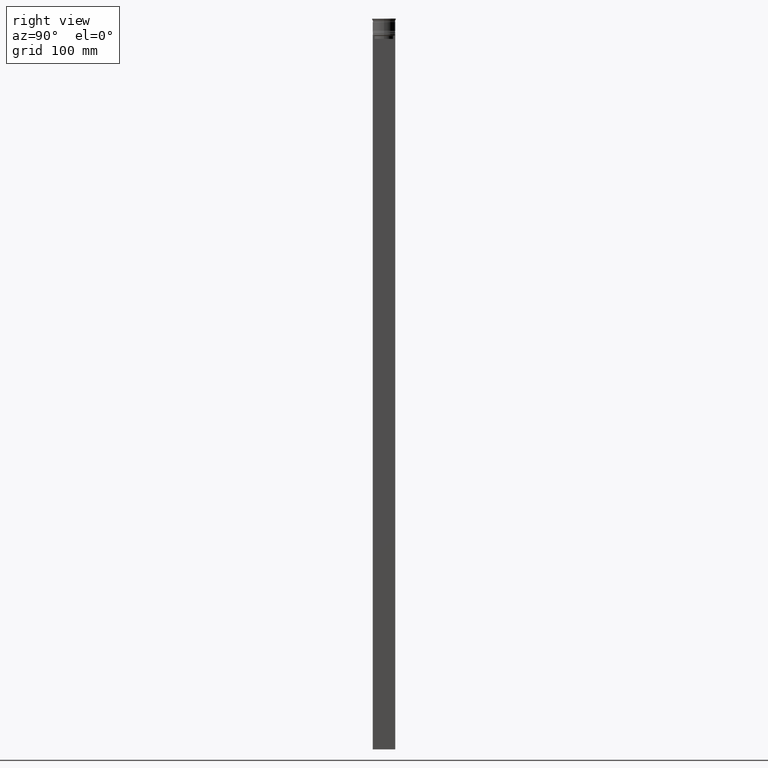
[diagram: clean part render]
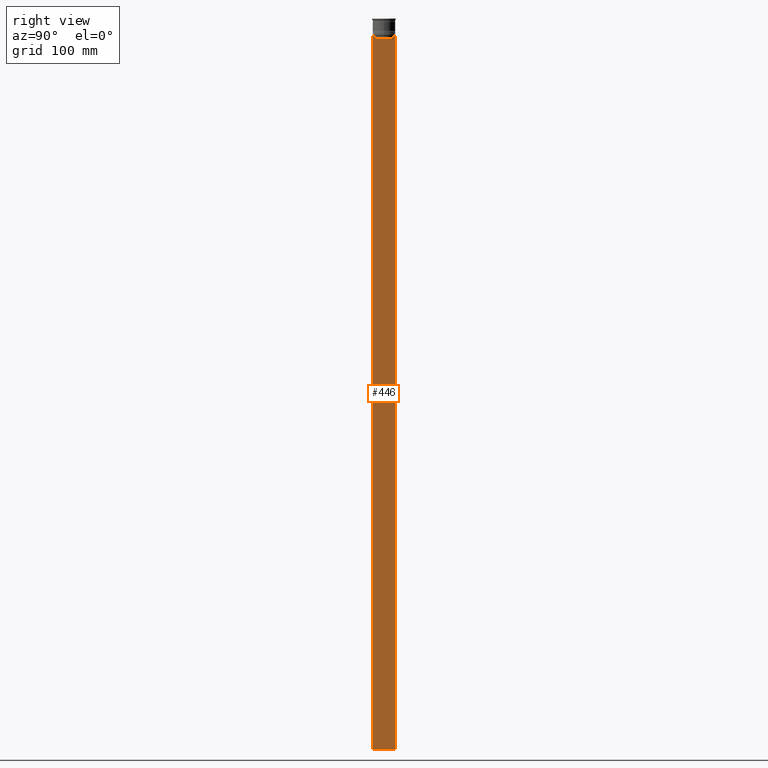
[diagram: same view with one face highlighted and labeled with its STEP entity id]
A machine part, right view. The second image highlights one B-rep face of the part: STEP entity #446.
In plain terms, the highlighted planar face has unit normal (-1, 0, 0).
Its self-contained STEP definition (entity closure, byte-faithful):
#29 = ORIENTED_EDGE ( 'NONE', *, *, #1394, .F. ) ;
#31 = VECTOR ( 'NONE', #2049, 1000.000000000000000 ) ;
#42 = CARTESIAN_POINT ( 'NONE',  ( 0.5000000000000000000, -8.385105843100605583, -14.00000000000000178 ) ) ;
#55 = VERTEX_POINT ( 'NONE', #2536 ) ;
#62 = LINE ( 'NONE', #1072, #883 ) ;
#103 = DIRECTION ( 'NONE',  ( 0.000000000000000000, -1.000000000000000000, 0.000000000000000000 ) ) ;
#117 = DIRECTION ( 'NONE',  ( 0.000000000000000000, 0.000000000000000000, -1.000000000000000000 ) ) ;
#174 = LINE ( 'NONE', #2632, #31 ) ;
#200 = VECTOR ( 'NONE', #1422, 1000.000000000000000 ) ;
#322 = CARTESIAN_POINT ( 'NONE',  ( 0.5000000000000000000, 7.899999999999994138, -17.00000000000000000 ) ) ;
#335 = EDGE_CURVE ( 'NONE', #798, #55, #1542, .T. ) ;
#443 = VERTEX_POINT ( 'NONE', #1763 ) ;
#446 = ADVANCED_FACE ( 'NONE', ( #1210 ), #1013, .F. ) ;
#518 = CARTESIAN_POINT ( 'NONE',  ( 0.5000000000000000000, -9.500000000000001776, -14.00000000000000178 ) ) ;
#550 = DIRECTION ( 'NONE',  ( 0.000000000000000000, 0.000000000000000000, -1.000000000000000000 ) ) ;
#607 = ORIENTED_EDGE ( 'NONE', *, *, #2367, .T. ) ;
#649 = CARTESIAN_POINT ( 'NONE',  ( 0.5000000000000000000, -8.218133703942523738, -14.16667607853445787 ) ) ;
#676 = LINE ( 'NONE', #1497, #1859 ) ;
#682 = EDGE_CURVE ( 'NONE', #1073, #1619, #2084, .T. ) ;
#733 = VERTEX_POINT ( 'NONE', #1923 ) ;
#755 = EDGE_CURVE ( 'NONE', #1727, #2428, #1535, .T. ) ;
#777 = EDGE_CURVE ( 'NONE', #1619, #2650, #2578, .T. ) ;
#798 = VERTEX_POINT ( 'NONE', #2333 ) ;
#869 = CARTESIAN_POINT ( 'NONE',  ( 0.5000000000000000000, -9.500000000000001776, -14.00000000000000178 ) ) ;
#883 = VECTOR ( 'NONE', #1683, 1000.000000000000000 ) ;
#1013 = PLANE ( 'NONE',  #1915 ) ;
#1014 = VECTOR ( 'NONE', #2534, 1000.000000000000000 ) ;
#1043 = EDGE_LOOP ( 'NONE', ( #1242, #1428, #1776, #1153, #1056, #2551, #2666, #607, #1178, #2440, #29, #2240 ) ) ;
#1056 = ORIENTED_EDGE ( 'NONE', *, *, #1950, .T. ) ;
#1072 = CARTESIAN_POINT ( 'NONE',  ( 0.5000000000000000000, -9.500000000000001776, -614.0000000000000000 ) ) ;
#1073 = VERTEX_POINT ( 'NONE', #1879 ) ;
#1153 = ORIENTED_EDGE ( 'NONE', *, *, #335, .T. ) ;
#1178 = ORIENTED_EDGE ( 'NONE', *, *, #2502, .T. ) ;
#1210 = FACE_OUTER_BOUND ( 'NONE', #1043, .T. ) ;
#1228 = DIRECTION ( 'NONE',  ( -1.000000000000000000, 0.000000000000000000, 0.000000000000000000 ) ) ;
#1242 = ORIENTED_EDGE ( 'NONE', *, *, #1897, .T. ) ;
#1259 = EDGE_CURVE ( 'NONE', #2394, #798, #1371, .T. ) ;
#1333 = VERTEX_POINT ( 'NONE', #2192 ) ;
#1371 = LINE ( 'NONE', #2022, #1965 ) ;
#1381 = CARTESIAN_POINT ( 'NONE',  ( 0.5000000000000000000, 9.499999999999998224, -14.00000000000000178 ) ) ;
#1382 = DIRECTION ( 'NONE',  ( 0.000000000000000000, 0.000000000000000000, 1.000000000000000000 ) ) ;
#1384 = CARTESIAN_POINT ( 'NONE',  ( 0.5000000000000000000, 8.385105843100605583, -14.00000000000000178 ) ) ;
#1394 = EDGE_CURVE ( 'NONE', #1727, #1333, #174, .T. ) ;
#1414 = CARTESIAN_POINT ( 'NONE',  ( 0.5000000000000000000, 7.884161337770803080, -14.50000000000000000 ) ) ;
#1422 = DIRECTION ( 'NONE',  ( 0.000000000000000000, -1.000000000000000000, 0.000000000000000000 ) ) ;
#1428 = ORIENTED_EDGE ( 'NONE', *, *, #2671, .T. ) ;
#1466 = LINE ( 'NONE', #1892, #1780 ) ;
#1497 = CARTESIAN_POINT ( 'NONE',  ( 0.5000000000000000000, -7.884161337770803080, 0.000000000000000000 ) ) ;
#1501 = CARTESIAN_POINT ( 'NONE',  ( 0.5000000000000000000, -8.385105843100605583, -14.00000000000000178 ) ) ;
#1535 = LINE ( 'NONE', #518, #1874 ) ;
#1542 = LINE ( 'NONE', #322, #200 ) ;
#1619 = VERTEX_POINT ( 'NONE', #1501 ) ;
#1654 = CARTESIAN_POINT ( 'NONE',  ( 0.5000000000000000000, -8.051152795888546265, -14.33334334204685057 ) ) ;
#1683 = DIRECTION ( 'NONE',  ( 0.000000000000000000, 1.000000000000000000, 0.000000000000000000 ) ) ;
#1694 = CARTESIAN_POINT ( 'NONE',  ( 0.5000000000000000000, -7.884161337770803080, -14.50000000000000000 ) ) ;
#1719 = VERTEX_POINT ( 'NONE', #2204 ) ;
#1721 = CARTESIAN_POINT ( 'NONE',  ( 0.5000000000000000000, 9.386692708297204035, -14.00000000000000178 ) ) ;
#1727 = VERTEX_POINT ( 'NONE', #1381 ) ;
#1763 = CARTESIAN_POINT ( 'NONE',  ( 0.5000000000000000000, 8.385105843100605583, -14.00000000000000178 ) ) ;
#1776 = ORIENTED_EDGE ( 'NONE', *, *, #1259, .T. ) ;
#1780 = VECTOR ( 'NONE', #2282, 1000.000000000000000 ) ;
#1859 = VECTOR ( 'NONE', #2314, 1000.000000000000000 ) ;
#1874 = VECTOR ( 'NONE', #103, 1000.000000000000000 ) ;
#1879 = CARTESIAN_POINT ( 'NONE',  ( 0.5000000000000000000, -7.884161337770803080, -14.50000000000000000 ) ) ;
#1883 = DIRECTION ( 'NONE',  ( 0.000000000000000000, -1.000000000000000000, 0.000000000000000000 ) ) ;
#1892 = CARTESIAN_POINT ( 'NONE',  ( 0.5000000000000000000, -9.500000000000001776, -14.00000000000000178 ) ) ;
#1897 = EDGE_CURVE ( 'NONE', #2428, #443, #1907, .T. ) ;
#1907 = LINE ( 'NONE', #869, #2226 ) ;
#1915 = AXIS2_PLACEMENT_3D ( 'NONE', #2191, #1228, #1382 ) ;
#1923 = CARTESIAN_POINT ( 'NONE',  ( 0.5000000000000000000, -9.500000000000001776, -614.0000000000000000 ) ) ;
#1931 = LINE ( 'NONE', #1959, #2595 ) ;
#1950 = EDGE_CURVE ( 'NONE', #55, #1073, #676, .T. ) ;
#1959 = CARTESIAN_POINT ( 'NONE',  ( 0.5000000000000000000, -9.500000000000001776, 5.026297590440445440 ) ) ;
#1965 = VECTOR ( 'NONE', #550, 1000.000000000000000 ) ;
#2022 = CARTESIAN_POINT ( 'NONE',  ( 0.5000000000000000000, 7.884161337770803080, 0.000000000000000000 ) ) ;
#2049 = DIRECTION ( 'NONE',  ( 0.000000000000000000, 0.000000000000000000, -1.000000000000000000 ) ) ;
#2084 = B_SPLINE_CURVE_WITH_KNOTS ( 'NONE', 3,
 ( #1694, #1654, #649, #42 ),
 .UNSPECIFIED., .F., .F.,
 ( 4, 4 ),
 ( 0.03673372442973153046, 0.03744389749832059688 ),
 .UNSPECIFIED. ) ;
#2191 = CARTESIAN_POINT ( 'NONE',  ( 0.5000000000000000000, -9.500000000000001776, 5.026297590440445440 ) ) ;
#2192 = CARTESIAN_POINT ( 'NONE',  ( 0.5000000000000000000, 9.499999999999998224, -614.0000000000000000 ) ) ;
#2204 = CARTESIAN_POINT ( 'NONE',  ( 0.5000000000000000000, -9.500000000000001776, -14.00000000000000178 ) ) ;
#2209 = CARTESIAN_POINT ( 'NONE',  ( 0.5000000000000000000, 8.218133718559618828, -14.16667606394327983 ) ) ;
#2226 = VECTOR ( 'NONE', #1883, 1000.000000000000000 ) ;
#2240 = ORIENTED_EDGE ( 'NONE', *, *, #755, .T. ) ;
#2259 = EDGE_CURVE ( 'NONE', #733, #1333, #62, .T. ) ;
#2282 = DIRECTION ( 'NONE',  ( 0.000000000000000000, -1.000000000000000000, 0.000000000000000000 ) ) ;
#2314 = DIRECTION ( 'NONE',  ( -0.000000000000000000, -0.000000000000000000, 1.000000000000000000 ) ) ;
#2333 = CARTESIAN_POINT ( 'NONE',  ( 0.5000000000000000000, 7.884161337770803080, -17.00000000000000000 ) ) ;
#2367 = EDGE_CURVE ( 'NONE', #2650, #1719, #1466, .T. ) ;
#2394 = VERTEX_POINT ( 'NONE', #2505 ) ;
#2398 = CARTESIAN_POINT ( 'NONE',  ( 0.5000000000000000000, -9.386692708297204035, -14.00000000000000178 ) ) ;
#2428 = VERTEX_POINT ( 'NONE', #1721 ) ;
#2440 = ORIENTED_EDGE ( 'NONE', *, *, #2259, .T. ) ;
#2452 = B_SPLINE_CURVE_WITH_KNOTS ( 'NONE', 3,
 ( #1384, #2209, #2633, #1414 ),
 .UNSPECIFIED., .F., .F.,
 ( 4, 4 ),
 ( 0.01426761478740281447, 0.01497538974438914448 ),
 .UNSPECIFIED. ) ;
#2502 = EDGE_CURVE ( 'NONE', #1719, #733, #1931, .T. ) ;
#2505 = CARTESIAN_POINT ( 'NONE',  ( 0.5000000000000000000, 7.884161337770803080, -14.50000000000000000 ) ) ;
#2523 = CARTESIAN_POINT ( 'NONE',  ( 0.5000000000000000000, -9.500000000000001776, -14.00000000000000178 ) ) ;
#2534 = DIRECTION ( 'NONE',  ( 0.000000000000000000, -1.000000000000000000, 0.000000000000000000 ) ) ;
#2536 = CARTESIAN_POINT ( 'NONE',  ( 0.5000000000000000000, -7.884161337770803080, -17.00000000000000000 ) ) ;
#2551 = ORIENTED_EDGE ( 'NONE', *, *, #682, .T. ) ;
#2578 = LINE ( 'NONE', #2523, #1014 ) ;
#2595 = VECTOR ( 'NONE', #117, 1000.000000000000000 ) ;
#2632 = CARTESIAN_POINT ( 'NONE',  ( 0.5000000000000000000, 9.499999999999998224, 5.026297590440445440 ) ) ;
#2633 = CARTESIAN_POINT ( 'NONE',  ( 0.5000000000000000000, 8.051152811434374001, -14.33334332653219079 ) ) ;
#2650 = VERTEX_POINT ( 'NONE', #2398 ) ;
#2666 = ORIENTED_EDGE ( 'NONE', *, *, #777, .T. ) ;
#2671 = EDGE_CURVE ( 'NONE', #443, #2394, #2452, .T. ) ;